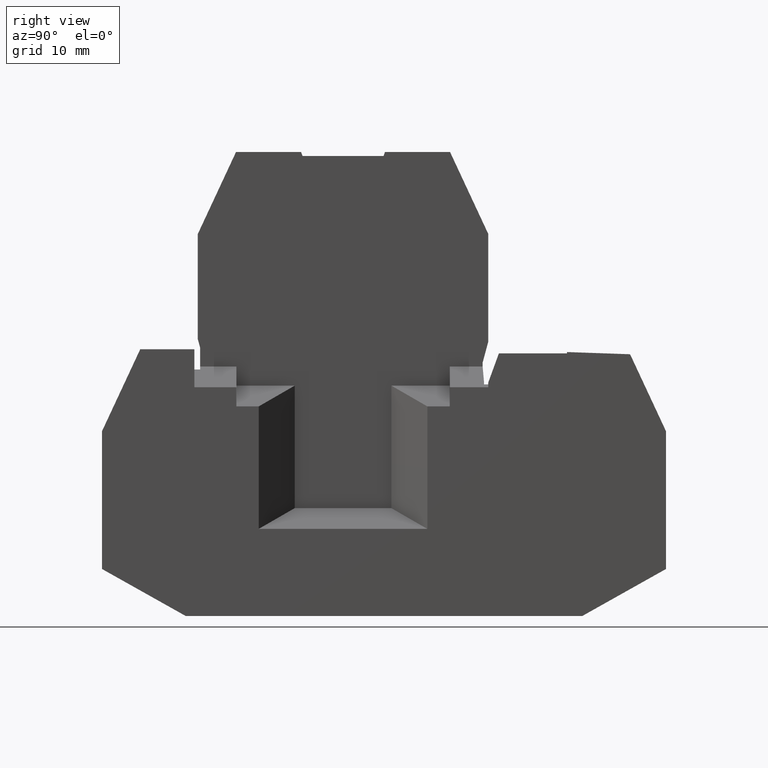
[diagram: clean part render]
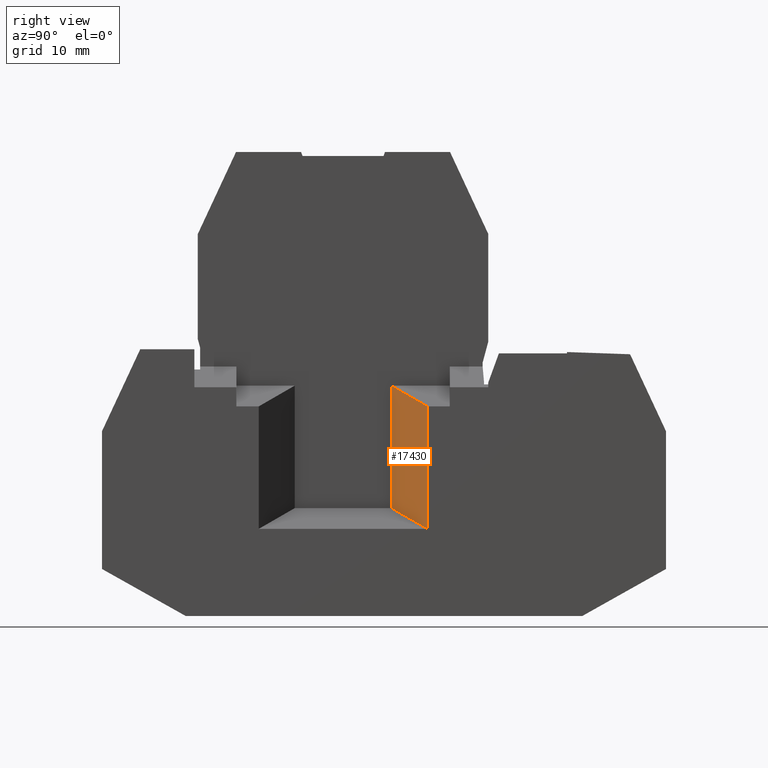
[diagram: same view with one face highlighted and labeled with its STEP entity id]
A machine part, right view. The second image highlights one B-rep face of the part: STEP entity #17430.
In plain terms, the highlighted planar face has unit normal (-0.866, 0.5, 0).
Its self-contained STEP definition (entity closure, byte-faithful):
#280=CARTESIAN_POINT('',(-4.5361631088467,-9.85073339024726,
15.5000000000049));
#290=VERTEX_POINT('',#280);
#320=CARTESIAN_POINT('',(-4.53616310884994,9.83366000003753,
15.5000000000049));
#330=DIRECTION('',(-1.64369946956923E-13,1.,-7.01935627136523E-30));
#340=VECTOR('',#330,1.);
#350=LINE('',#320,#340);
#360=CARTESIAN_POINT('',(-4.53616310884421,-25.0257319820079,
15.5000000000049));
#370=VERTEX_POINT('',#360);
#380=EDGE_CURVE('',#370,#290,#350,.T.);
#5350=CARTESIAN_POINT('',(-0.0761322792978607,-27.6007319820407,
18.0750000000435));
#5360=VERTEX_POINT('',#5350);
#5390=CARTESIAN_POINT('',(-0.076132279304014,9.83366000003753,
18.0750000000435));
#5400=DIRECTION('',(-1.64369946956923E-13,1.,-7.01935627136523E-30));
#5410=VECTOR('',#5400,1.);
#5420=LINE('',#5390,#5410);
#5430=CARTESIAN_POINT('',(-0.0761322793003547,-12.4257333902802,
18.0750000000435));
#5440=VERTEX_POINT('',#5430);
#5450=EDGE_CURVE('',#5360,#5440,#5420,.T.);
#13070=CARTESIAN_POINT('',(-12.6172159999997,-20.3601339199631,
10.8344019379498));
#13080=DIRECTION('',(-0.774596669241106,0.447213595499787,
-0.447213595500783));
#13090=VECTOR('',#13080,1.);
#13100=LINE('',#13070,#13090);
#13110=EDGE_CURVE('',#5360,#370,#13100,.T.);
#13670=CARTESIAN_POINT('',(-12.6172159999997,-5.18513532820392,
10.8344019379512));
#13680=DIRECTION('',(0.774596669241104,-0.44721359549979,
0.447213595500782));
#13690=VECTOR('',#13680,1.);
#13700=LINE('',#13670,#13690);
#13710=EDGE_CURVE('',#290,#5440,#13700,.T.);
#17320=CARTESIAN_POINT('',(-5.74404699673128,-19.9057575952244,
14.8026279121823));
#17330=DIRECTION('',(0.50000000000091,8.21849734786112E-14,
-0.866025403783913));
#17340=DIRECTION('',(0.866025403783914,1.85086096946183E-13,
0.50000000000091));
#17350=AXIS2_PLACEMENT_3D('',#17320,#17330,#17340);
#17360=PLANE('',#17350);
#17370=ORIENTED_EDGE('',*,*,#380,.F.);
#17380=ORIENTED_EDGE('',*,*,#13710,.F.);
#17390=ORIENTED_EDGE('',*,*,#5450,.T.);
#17400=ORIENTED_EDGE('',*,*,#13110,.F.);
#17410=EDGE_LOOP('',(#17400,#17390,#17380,#17370));
#17420=FACE_OUTER_BOUND('',#17410,.T.);
#17430=ADVANCED_FACE('',(#17420),#17360,.F.);